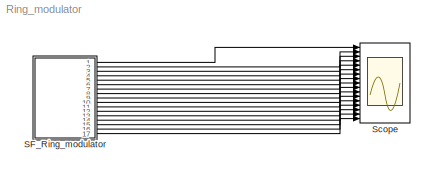
MODEL Ring_modulator
KIND model
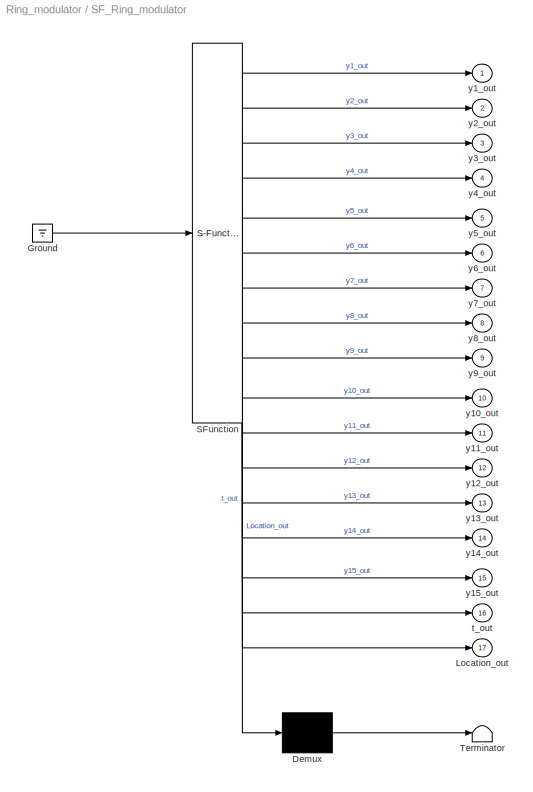
BLOCK [SubSystem] SF_Ring_modulator
  ErrorFcn = Stateflow.Translate.translate
  PermitHierarchicalResolution = ExplicitOnly
  Ports = [0, 17]
  RequestExecContextInheritance = off
  SFBlockType = Chart
  SID = 1
  TreatAsAtomicUnit = on
BLOCK [Demux] SF_Ring_modulator/ Demux 
  Outputs = 1
  Ports = [1, 1]
  SID = 1::95
BLOCK [Ground] SF_Ring_modulator/ Ground 
  SID = 1::97
BLOCK [S-Function] SF_Ring_modulator/ SFunction 
  EnableBusSupport = off
  FunctionName = sf_sfun
  PortCounts = [1 18]
  Ports = [1, 18]
  SFcnIsStateOwnerBlock = off
  SFunctionDeploymentMode = off
  SID = 1::94
  Tag = Stateflow S-Function 3
BLOCK [Terminator] SF_Ring_modulator/ Terminator 
  SID = 1::96
BLOCK [Outport] SF_Ring_modulator/Location_out
  IconDisplay = Port number
  Port = 17
  SID = 1::93
BLOCK [Outport] SF_Ring_modulator/t_out
  IconDisplay = Port number
  Port = 16
  SID = 1::92
BLOCK [Outport] SF_Ring_modulator/y10_out
  IconDisplay = Port number
  Port = 10
  SID = 1::86
BLOCK [Outport] SF_Ring_modulator/y11_out
  IconDisplay = Port number
  Port = 11
  SID = 1::87
BLOCK [Outport] SF_Ring_modulator/y12_out
  IconDisplay = Port number
  Port = 12
  SID = 1::88
BLOCK [Outport] SF_Ring_modulator/y13_out
  IconDisplay = Port number
  Port = 13
  SID = 1::89
BLOCK [Outport] SF_Ring_modulator/y14_out
  IconDisplay = Port number
  Port = 14
  SID = 1::90
BLOCK [Outport] SF_Ring_modulator/y15_out
  IconDisplay = Port number
  Port = 15
  SID = 1::91
BLOCK [Outport] SF_Ring_modulator/y1_out
  IconDisplay = Port number
  SID = 1::77
BLOCK [Outport] SF_Ring_modulator/y2_out
  IconDisplay = Port number
  Port = 2
  SID = 1::78
BLOCK [Outport] SF_Ring_modulator/y3_out
  IconDisplay = Port number
  Port = 3
  SID = 1::79
BLOCK [Outport] SF_Ring_modulator/y4_out
  IconDisplay = Port number
  Port = 4
  SID = 1::80
BLOCK [Outport] SF_Ring_modulator/y5_out
  IconDisplay = Port number
  Port = 5
  SID = 1::81
BLOCK [Outport] SF_Ring_modulator/y6_out
  IconDisplay = Port number
  Port = 6
  SID = 1::82
BLOCK [Outport] SF_Ring_modulator/y7_out
  IconDisplay = Port number
  Port = 7
  SID = 1::83
BLOCK [Outport] SF_Ring_modulator/y8_out
  IconDisplay = Port number
  Port = 8
  SID = 1::84
BLOCK [Outport] SF_Ring_modulator/y9_out
  IconDisplay = Port number
  Port = 9
  SID = 1::85
BLOCK [Scope] Scope
  Floating = off
  NumInputPorts = 17
  Ports = [17]
  SID = 2
  ScopeSpecificationString = C++SS(StrPVP('Location','[188, 365, 512, 604]'),StrPVP('Open','off'),MxPVP('AxesTitles',54,'struct(''axes1'',''%<SignalLabel>'',''axes2'',''%<SignalLabel>'',''axes3'',''%<SignalLabel>'',''axes4'',''%<SignalLabel>'',''axes5'',''%<SignalLabel>'',''axes6'',''%<SignalLabel>'',''axes7'',''%<SignalLabel>'',''axes8'',''%<SignalLabel>'',''axes9'',''%<SignalLabel>'',''axes10'',''%<SignalLabel>'',''axes11''...<+362ch>
LINE SF_Ring_modulator/ Demux :1 -> SF_Ring_modulator/ Terminator :1
LINE SF_Ring_modulator/ Ground :1 -> SF_Ring_modulator/ SFunction :1
LINE SF_Ring_modulator/ SFunction :1 -> SF_Ring_modulator/ Demux :1
LINE SF_Ring_modulator/ SFunction :10 -> SF_Ring_modulator/y9_out:1
LINE SF_Ring_modulator/ SFunction :11 -> SF_Ring_modulator/y10_out:1
LINE SF_Ring_modulator/ SFunction :12 -> SF_Ring_modulator/y11_out:1
LINE SF_Ring_modulator/ SFunction :13 -> SF_Ring_modulator/y12_out:1
LINE SF_Ring_modulator/ SFunction :14 -> SF_Ring_modulator/y13_out:1
LINE SF_Ring_modulator/ SFunction :15 -> SF_Ring_modulator/y14_out:1
LINE SF_Ring_modulator/ SFunction :16 -> SF_Ring_modulator/y15_out:1
LINE SF_Ring_modulator/ SFunction :17 -> SF_Ring_modulator/t_out:1
LINE SF_Ring_modulator/ SFunction :18 -> SF_Ring_modulator/Location_out:1
LINE SF_Ring_modulator/ SFunction :2 -> SF_Ring_modulator/y1_out:1
LINE SF_Ring_modulator/ SFunction :3 -> SF_Ring_modulator/y2_out:1
LINE SF_Ring_modulator/ SFunction :4 -> SF_Ring_modulator/y3_out:1
LINE SF_Ring_modulator/ SFunction :5 -> SF_Ring_modulator/y4_out:1
LINE SF_Ring_modulator/ SFunction :6 -> SF_Ring_modulator/y5_out:1
LINE SF_Ring_modulator/ SFunction :7 -> SF_Ring_modulator/y6_out:1
LINE SF_Ring_modulator/ SFunction :8 -> SF_Ring_modulator/y7_out:1
LINE SF_Ring_modulator/ SFunction :9 -> SF_Ring_modulator/y8_out:1
LINE SF_Ring_modulator:1 -> Scope:1
LINE SF_Ring_modulator:10 -> Scope:10
LINE SF_Ring_modulator:11 -> Scope:11
LINE SF_Ring_modulator:12 -> Scope:12
LINE SF_Ring_modulator:13 -> Scope:13
LINE SF_Ring_modulator:14 -> Scope:14
LINE SF_Ring_modulator:15 -> Scope:15
LINE SF_Ring_modulator:16 -> Scope:16
LINE SF_Ring_modulator:17 -> Scope:17
LINE SF_Ring_modulator:2 -> Scope:2
LINE SF_Ring_modulator:3 -> Scope:3
LINE SF_Ring_modulator:4 -> Scope:4
LINE SF_Ring_modulator:5 -> Scope:5
LINE SF_Ring_modulator:6 -> Scope:6
LINE SF_Ring_modulator:7 -> Scope:7
LINE SF_Ring_modulator:8 -> Scope:8
LINE SF_Ring_modulator:9 -> Scope:9
CHART SF_Ring_modulator states=1 transitions=1
  STATE_LABEL 'Ring_modulator\\ndu:\\ny1_dot = 1.0 / C * (y8 - 0.5 * y10 + 0.5 * y11 + y14 - 1.0 / R * y1);\\ny2_dot = 1.0 / C * (y9 - 0.5 * y12 + 0.5 * y13 + y15 - 1.0 / R * y2);\\ny3_dot = 1.0 / Cs * (y10 - gamma * (exp(theta * (y3 - y5 - y7 - 2.0 * sin(20000.0 * pi * t))) - 1.0) + gamma * (exp(theta * (-y3 - y6 + y7 + 2.0 * sin(20000.0 * pi * t))) - 1.0));\\ny4_dot = 1.0 / Cs * (-y11 + gamma * (exp(theta * (-y4 + ...<+1442ch>'
